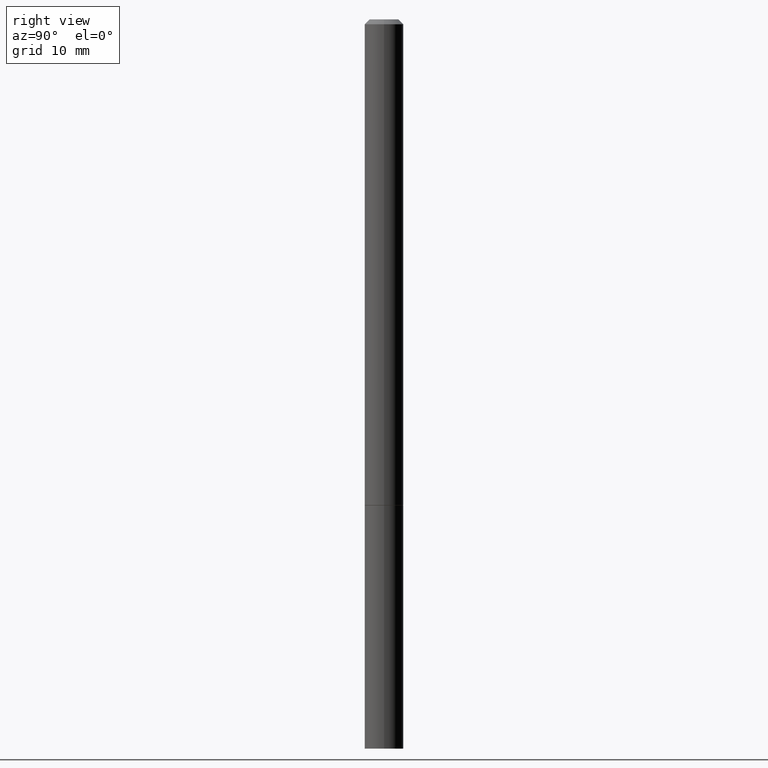
[diagram: clean part render]
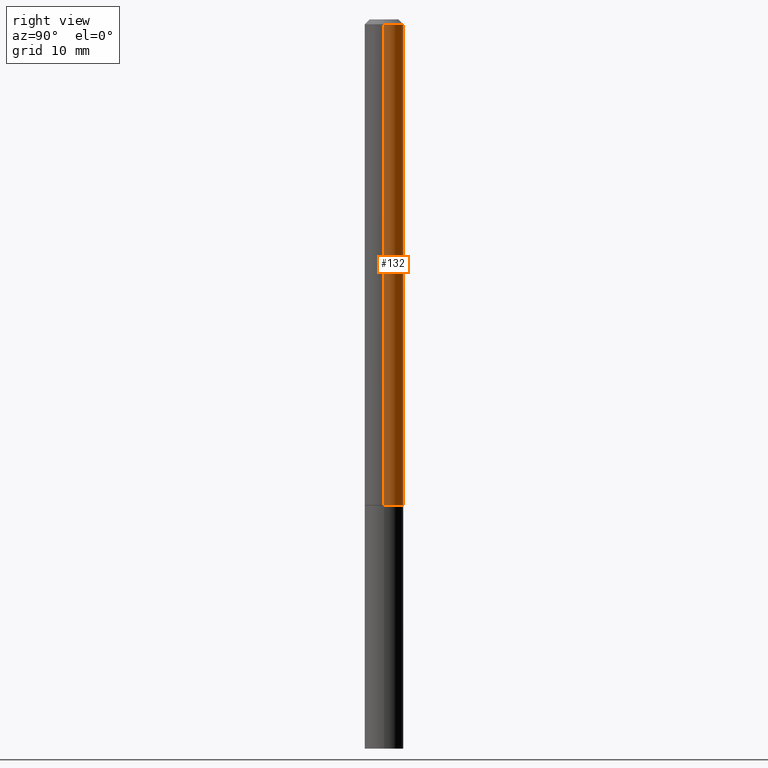
[diagram: same view with one face highlighted and labeled with its STEP entity id]
A machine part, right view. The second image highlights one B-rep face of the part: STEP entity #132.
In plain terms, the highlighted cylindrical surface (edge-blend (fillet) strip) has radius 2.0002 mm, axis along (-0, 0, 1).
Its self-contained STEP definition (entity closure, byte-faithful):
#17 = ORIENTED_EDGE ( 'NONE', *, *, #259, .T. ) ;
#24 = VERTEX_POINT ( 'NONE', #359 ) ;
#33 = DIRECTION ( 'NONE',  ( 1.000000000000000000, -6.982962677686266711E-15, 0.000000000000000000 ) ) ;
#67 = VECTOR ( 'NONE', #205, 39.37007874015748143 ) ;
#73 = ORIENTED_EDGE ( 'NONE', *, *, #146, .T. ) ;
#74 = AXIS2_PLACEMENT_3D ( 'NONE', #344, #201, #234 ) ;
#82 = VERTEX_POINT ( 'NONE', #361 ) ;
#83 = FACE_OUTER_BOUND ( 'NONE', #281, .T. ) ;
#88 = CARTESIAN_POINT ( 'NONE',  ( -0.07874999999999987566, 5.595524044110780128E-16, -3.873661383575732186E-30 ) ) ;
#94 = AXIS2_PLACEMENT_3D ( 'NONE', #298, #176, #294 ) ;
#132 = ADVANCED_FACE ( 'NONE', ( #83 ), #172, .T. ) ;
#145 = DIRECTION ( 'NONE',  ( -2.445468806185136597E-29, 3.491481338843145583E-15, 1.000000000000000000 ) ) ;
#146 = EDGE_CURVE ( 'NONE', #223, #24, #233, .T. ) ;
#151 = CARTESIAN_POINT ( 'NONE',  ( 0.07874999999999987566, -5.499083108677926554E-16, 3.839989210939293411E-30 ) ) ;
#172 = CYLINDRICAL_SURFACE ( 'NONE', #74, 0.07874999999999987566 ) ;
#176 = DIRECTION ( 'NONE',  ( -2.445468806185136597E-29, 3.491481338843145583E-15, 1.000000000000000000 ) ) ;
#182 = CIRCLE ( 'NONE', #216, 0.07874999999999973688 ) ;
#199 = DIRECTION ( 'NONE',  ( -2.445468806185136877E-29, 3.491481338843145188E-15, 1.000000000000000000 ) ) ;
#201 = DIRECTION ( 'NONE',  ( -2.445468806185136597E-29, 3.491481338843145583E-15, 1.000000000000000000 ) ) ;
#205 = DIRECTION ( 'NONE',  ( -2.445468806185136877E-29, 3.491481338843145188E-15, 1.000000000000000000 ) ) ;
#206 = EDGE_CURVE ( 'NONE', #82, #24, #182, .T. ) ;
#216 = AXIS2_PLACEMENT_3D ( 'NONE', #286, #145, #33 ) ;
#223 = VERTEX_POINT ( 'NONE', #315 ) ;
#233 = LINE ( 'NONE', #88, #347 ) ;
#234 = DIRECTION ( 'NONE',  ( 1.000000000000000000, -6.982962677686266711E-15, 4.876176775795935793E-29 ) ) ;
#243 = EDGE_CURVE ( 'NONE', #337, #82, #284, .T. ) ;
#259 = EDGE_CURVE ( 'NONE', #337, #223, #260, .T. ) ;
#260 = CIRCLE ( 'NONE', #94, 0.07875000000000000056 ) ;
#281 = EDGE_LOOP ( 'NONE', ( #17, #73, #314, #312 ) ) ;
#284 = LINE ( 'NONE', #151, #67 ) ;
#286 = CARTESIAN_POINT ( 'NONE',  ( 4.890937612370276662E-31, -6.982962677686296539E-17, -0.02000000000000001776 ) ) ;
#294 = DIRECTION ( 'NONE',  ( 1.000000000000000000, -6.982962677686261977E-15, 0.000000000000000000 ) ) ;
#298 = CARTESIAN_POINT ( 'NONE',  ( 4.811459876169255671E-29, -6.869489534173887122E-15, -1.967499999999999805 ) ) ;
#312 = ORIENTED_EDGE ( 'NONE', *, *, #243, .F. ) ;
#314 = ORIENTED_EDGE ( 'NONE', *, *, #206, .F. ) ;
#315 = CARTESIAN_POINT ( 'NONE',  ( -0.07875000000000000056, -2.910107176064290492E-15, -1.967499999999999805 ) ) ;
#329 = CARTESIAN_POINT ( 'NONE',  ( 0.07875000000000000056, -7.419397845041680468E-15, -1.967499999999999805 ) ) ;
#337 = VERTEX_POINT ( 'NONE', #329 ) ;
#344 = CARTESIAN_POINT ( 'NONE',  ( 0.000000000000000000, 0.000000000000000000, 0.000000000000000000 ) ) ;
#347 = VECTOR ( 'NONE', #199, 39.37007874015748143 ) ;
#359 = CARTESIAN_POINT ( 'NONE',  ( -0.07874999999999973688, 4.800786840909286670E-16, -0.02000000000000001776 ) ) ;
#361 = CARTESIAN_POINT ( 'NONE',  ( 0.07874999999999973688, -6.100938441013694129E-16, -0.02000000000000001776 ) ) ;